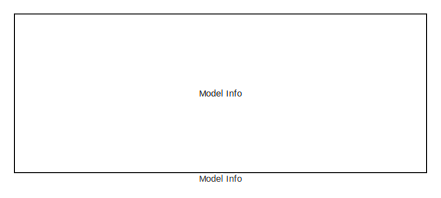
[diagram: root canvas - part 1/3, top center region]
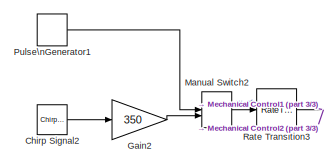
[diagram: root canvas - part 2/3, middle left region]
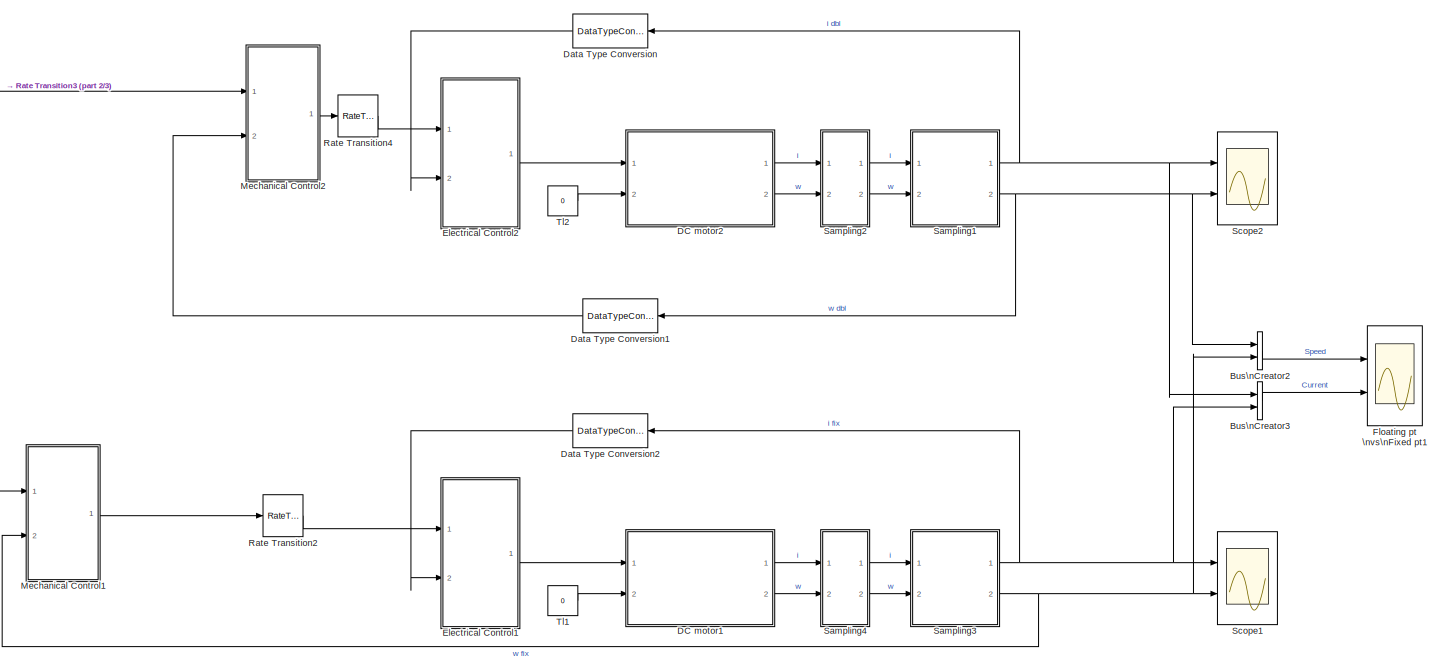
[diagram: root canvas - part 3/3, full width, middle band]
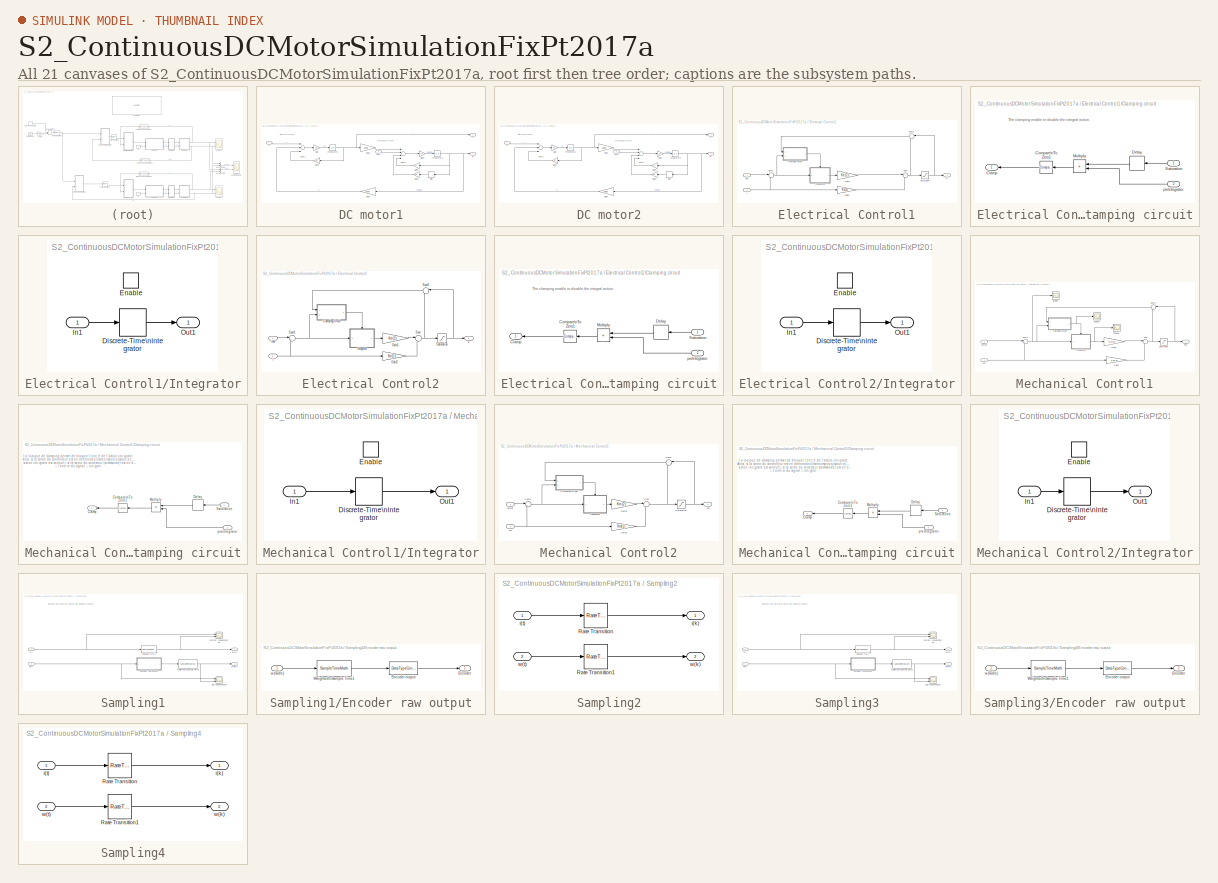
[diagram: thumbnail index - all 21 canvases of the model, root first then tree order]
MODEL S2_ContinuousDCMotorSimulationFixPt2017a
KIND model
BLOCK [BusCreator] Bus\nCreator2
  DisplayOption = bar
  InheritFromInputs = on
  Inputs = 2
  Ports = [2, 1]
  SID = 772
BLOCK [BusCreator] Bus\nCreator3
  DisplayOption = bar
  InheritFromInputs = on
  Inputs = 2
  Ports = [2, 1]
  SID = 773
BLOCK [Reference] Chirp Signal2  REF=simulink/Sources/Chirp Signal
  Ports = [0, 1]
  SID = 484
  SourceBlock = simulink/Sources/Chirp Signal
  SourceProductBaseCode = SL
  SourceProductName = Simulink
  SourceType = chirp
  T = 20
  VectorParams1D = on
  f1 = 0.1
  f2 = 5
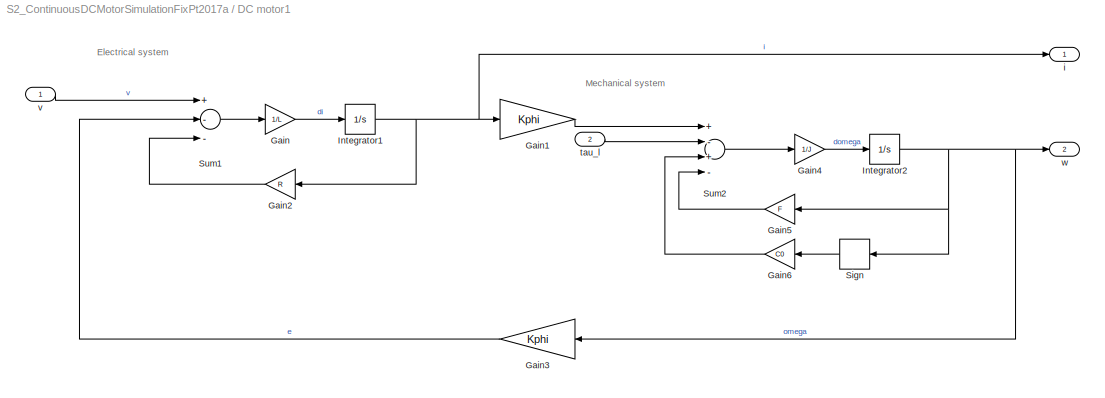
BLOCK [SubSystem] DC motor1
  Ports = [2, 2]
  RequestExecContextInheritance = off
  SID = 672
BLOCK [Gain] DC motor1/Gain
  Gain = 1/L
  OutDataTypeStr = Inherit: Inherit via internal rule
  ParamDataTypeStr = Inherit: Inherit via internal rule
  SID = 675
  SaturateOnIntegerOverflow = off
BLOCK [Gain] DC motor1/Gain1
  Gain = Kphi
  OutDataTypeStr = Inherit: Inherit via internal rule
  ParamDataTypeStr = Inherit: Inherit via internal rule
  SID = 676
  SaturateOnIntegerOverflow = off
BLOCK [Gain] DC motor1/Gain2
  Gain = R
  OutDataTypeStr = Inherit: Inherit via internal rule
  ParamDataTypeStr = Inherit: Inherit via internal rule
  SID = 677
  SaturateOnIntegerOverflow = off
BLOCK [Gain] DC motor1/Gain3  
  Gain = Kphi
  OutDataTypeStr = Inherit: Inherit via internal rule
  ParamDataTypeStr = Inherit: Inherit via internal rule
  SID = 678
  SaturateOnIntegerOverflow = off
BLOCK [Gain] DC motor1/Gain4
  Gain = 1/J
  OutDataTypeStr = Inherit: Inherit via internal rule
  ParamDataTypeStr = Inherit: Inherit via internal rule
  SID = 679
  SaturateOnIntegerOverflow = off
BLOCK [Gain] DC motor1/Gain5
  Gain = F
  OutDataTypeStr = Inherit: Inherit via internal rule
  ParamDataTypeStr = Inherit: Inherit via internal rule
  SID = 680
  SaturateOnIntegerOverflow = off
BLOCK [Gain] DC motor1/Gain6
  Gain = C0
  OutDataTypeStr = Inherit: Inherit via internal rule
  ParamDataTypeStr = Inherit: Inherit via internal rule
  SID = 681
  SaturateOnIntegerOverflow = off
BLOCK [Integrator] DC motor1/Integrator1
  Ports = [1, 1]
  SID = 682
BLOCK [Integrator] DC motor1/Integrator2
  Ports = [1, 1]
  SID = 683
BLOCK [Signum] DC motor1/Sign
  SID = 684
BLOCK [Sum] DC motor1/Sum1
  InputSameDT = off
  Inputs = +--
  OutDataTypeStr = Inherit: Inherit via internal rule
  Ports = [3, 1]
  SID = 685
  SaturateOnIntegerOverflow = off
BLOCK [Sum] DC motor1/Sum2
  InputSameDT = off
  Inputs = +-+-
  OutDataTypeStr = Inherit: Inherit via internal rule
  Ports = [4, 1]
  SID = 686
  SaturateOnIntegerOverflow = off
BLOCK [Outport] DC motor1/i
  IconDisplay = Port number
  SID = 687
BLOCK [Inport] DC motor1/tau_l
  IconDisplay = Port number
  Port = 2
  SID = 674
BLOCK [Inport] DC motor1/v
  IconDisplay = Port number
  SID = 673
  SampleTime = 0
BLOCK [Outport] DC motor1/w
  IconDisplay = Port number
  Port = 2
  SID = 688
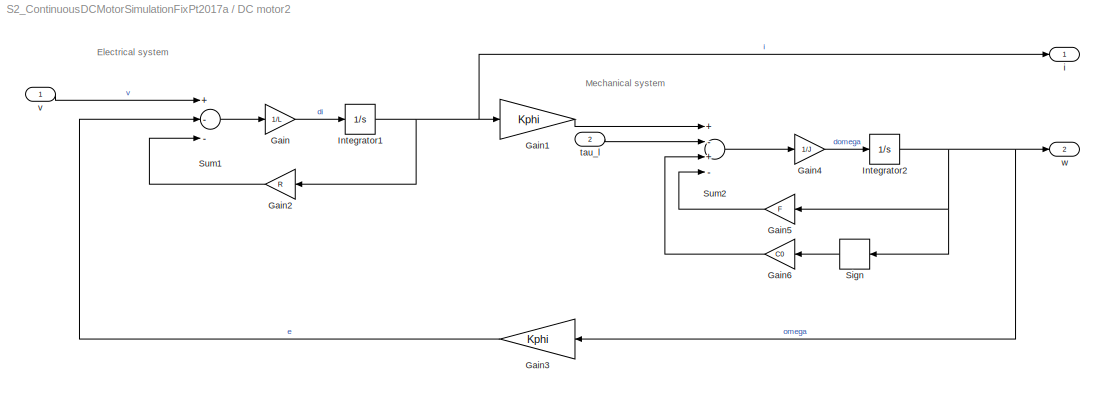
BLOCK [SubSystem] DC motor2
  Ports = [2, 2]
  RequestExecContextInheritance = off
  SID = 485
BLOCK [Gain] DC motor2/Gain
  Gain = 1/L
  OutDataTypeStr = Inherit: Inherit via internal rule
  ParamDataTypeStr = Inherit: Inherit via internal rule
  SID = 488
  SaturateOnIntegerOverflow = off
BLOCK [Gain] DC motor2/Gain1
  Gain = Kphi
  OutDataTypeStr = Inherit: Inherit via internal rule
  ParamDataTypeStr = Inherit: Inherit via internal rule
  SID = 489
  SaturateOnIntegerOverflow = off
BLOCK [Gain] DC motor2/Gain2
  Gain = R
  OutDataTypeStr = Inherit: Inherit via internal rule
  ParamDataTypeStr = Inherit: Inherit via internal rule
  SID = 490
  SaturateOnIntegerOverflow = off
BLOCK [Gain] DC motor2/Gain3  
  Gain = Kphi
  OutDataTypeStr = Inherit: Inherit via internal rule
  ParamDataTypeStr = Inherit: Inherit via internal rule
  SID = 491
  SaturateOnIntegerOverflow = off
BLOCK [Gain] DC motor2/Gain4
  Gain = 1/J
  OutDataTypeStr = Inherit: Inherit via internal rule
  ParamDataTypeStr = Inherit: Inherit via internal rule
  SID = 492
  SaturateOnIntegerOverflow = off
BLOCK [Gain] DC motor2/Gain5
  Gain = F
  OutDataTypeStr = Inherit: Inherit via internal rule
  ParamDataTypeStr = Inherit: Inherit via internal rule
  SID = 493
  SaturateOnIntegerOverflow = off
BLOCK [Gain] DC motor2/Gain6
  Gain = C0
  OutDataTypeStr = Inherit: Inherit via internal rule
  ParamDataTypeStr = Inherit: Inherit via internal rule
  SID = 494
  SaturateOnIntegerOverflow = off
BLOCK [Integrator] DC motor2/Integrator1
  Ports = [1, 1]
  SID = 495
BLOCK [Integrator] DC motor2/Integrator2
  Ports = [1, 1]
  SID = 496
BLOCK [Signum] DC motor2/Sign
  SID = 497
BLOCK [Sum] DC motor2/Sum1
  InputSameDT = off
  Inputs = +--
  OutDataTypeStr = Inherit: Inherit via internal rule
  Ports = [3, 1]
  SID = 498
  SaturateOnIntegerOverflow = off
BLOCK [Sum] DC motor2/Sum2
  InputSameDT = off
  Inputs = +-+-
  OutDataTypeStr = Inherit: Inherit via internal rule
  Ports = [4, 1]
  SID = 499
  SaturateOnIntegerOverflow = off
BLOCK [Outport] DC motor2/i
  IconDisplay = Port number
  SID = 500
BLOCK [Inport] DC motor2/tau_l
  IconDisplay = Port number
  Port = 2
  SID = 487
BLOCK [Inport] DC motor2/v
  IconDisplay = Port number
  SID = 486
  SampleTime = 0
BLOCK [Outport] DC motor2/w
  IconDisplay = Port number
  Port = 2
  SID = 501
BLOCK [DataTypeConversion] Data Type Conversion
  OutDataTypeStr = double
  RndMeth = Floor
  SID = 583
  SaturateOnIntegerOverflow = off
BLOCK [DataTypeConversion] Data Type Conversion1
  OutDataTypeStr = double
  RndMeth = Floor
  SID = 584
  SaturateOnIntegerOverflow = off
BLOCK [DataTypeConversion] Data Type Conversion2
  RndMeth = Floor
  SID = 691
  SaturateOnIntegerOverflow = off
BLOCK [SubSystem] Electrical Control1
  Ports = [2, 1]
  RequestExecContextInheritance = off
  SID = 693
BLOCK [SubSystem] Electrical Control1/Clamping circuit
  Ports = [2, 1]
  RequestExecContextInheritance = off
  SID = 696
BLOCK [Outport] Electrical Control1/Clamping circuit/Clamp
  DisableCoverage = on
  IconDisplay = Port number
  SID = 702
BLOCK [Reference] Electrical Control1/Clamping circuit/Compare\nTo Zero1  REF=simulink/Logic and Bit\nOperations/Compare\nTo Zero
  OutDataTypeStr = boolean
  Ports = [1, 1]
  SID = 699
  SourceBlock = simulink/Logic and Bit\nOperations/Compare\nTo Zero
  SourceProductBaseCode = SL
  SourceProductName = Simulink
  SourceType = Compare To Zero
  ZeroCross = on
  relop = <=
BLOCK [Delay] Electrical Control1/Clamping circuit/Delay
  DelayLength = 1
  InitialCondition = 0
  InputPortMap = u0
  Ports = [1, 1]
  SID = 700
BLOCK [Product] Electrical Control1/Clamping circuit/Multiply
  InputSameDT = off
  OutDataTypeStr = Inherit: Inherit via internal rule
  Ports = [2, 1]
  RndMeth = Floor
  SID = 701
  SaturateOnIntegerOverflow = off
BLOCK [Inport] Electrical Control1/Clamping circuit/Saturation
  DisableCoverage = on
  IconDisplay = Port number
  SID = 697
BLOCK [Inport] Electrical Control1/Clamping circuit/preIntegrator
  DisableCoverage = on
  IconDisplay = Port number
  Port = 2
  SID = 698
  VarSizeSig = No
BLOCK [Gain] Electrical Control1/Gain1
  Gain = Ke(2)
  OutDataTypeStr = fixdt(1,16)
  OutMax = [2*Vmax]
  OutMin = [2*Vmin]
  ParamDataTypeStr = Inherit: Inherit via internal rule
  SID = 704
  SaturateOnIntegerOverflow = off
BLOCK [Gain] Electrical Control1/Gain2
  Gain = Ke(1)
  OutDataTypeStr = fixdt(1,16)
  OutMax = [2*Vmax]
  OutMin = [2*Vmin]
  ParamDataTypeStr = Inherit: Inherit via internal rule
  SID = 705
  SaturateOnIntegerOverflow = off
BLOCK [SubSystem] Electrical Control1/Integrator
  Ports = [1, 1, 1]
  RequestExecContextInheritance = off
  SID = 706
BLOCK [DiscreteIntegrator] Electrical Control1/Integrator/Discrete-Time\nIntegrator
  ICPrevOutput = DiscIntNeverNeededParam
  ICPrevScaledInput = DiscIntNeverNeededParam
  InitialConditionSetting = State (most efficient)
  OutDataTypeStr = fixdt(1,32)
  OutMax = [2*Imax]
  OutMin = [2*Imin]
  Ports = [1, 1]
  SID = 709
  SampleTime = Ts
BLOCK [EnablePort] Electrical Control1/Integrator/Enable
  Ports = []
  SID = 708
BLOCK [Inport] Electrical Control1/Integrator/In1
  IconDisplay = Port number
  SID = 707
BLOCK [Outport] Electrical Control1/Integrator/Out1
  IconDisplay = Port number
  SID = 710
BLOCK [Saturate] Electrical Control1/Saturation
  InputPortMap = u0
  LowerLimit = Vmin
  Ports = [1, 1]
  SID = 711
  UpperLimit = Vmax
BLOCK [Sum] Electrical Control1/Sum
  IconShape = round
  InputSameDT = off
  Inputs = |--
  OutDataTypeStr = Inherit: Inherit via internal rule
  Ports = [2, 1]
  SID = 712
  SaturateOnIntegerOverflow = off
BLOCK [Sum] Electrical Control1/Sum1
  IconShape = round
  InputSameDT = off
  Inputs = |+-
  OutDataTypeStr = fixdt(1,16)
  OutMax = [2*Imax]
  OutMin = [2*Imin]
  Ports = [2, 1]
  SID = 713
  SaturateOnIntegerOverflow = off
BLOCK [Sum] Electrical Control1/Sum2
  AccumDataTypeStr = Inherit: Same as first input
  IconShape = round
  InputSameDT = off
  Inputs = |-+
  OutDataTypeStr = Inherit: Same as accumulator
  Ports = [2, 1]
  SID = 714
  SaturateOnIntegerOverflow = off
BLOCK [Inport] Electrical Control1/i
  IconDisplay = Port number
  Port = 2
  SID = 695
BLOCK [Inport] Electrical Control1/iref
  IconDisplay = Port number
  SID = 694
BLOCK [Outport] Electrical Control1/v
  IconDisplay = Port number
  SID = 715
BLOCK [SubSystem] Electrical Control2
  Ports = [2, 1]
  RequestExecContextInheritance = off
  SID = 504
BLOCK [SubSystem] Electrical Control2/Clamping circuit
  Ports = [2, 1]
  RequestExecContextInheritance = off
  SID = 507
BLOCK [Outport] Electrical Control2/Clamping circuit/Clamp
  DisableCoverage = on
  IconDisplay = Port number
  SID = 513
BLOCK [Reference] Electrical Control2/Clamping circuit/Compare\nTo Zero1  REF=simulink/Logic and Bit\nOperations/Compare\nTo Zero
  OutDataTypeStr = boolean
  Ports = [1, 1]
  SID = 510
  SourceBlock = simulink/Logic and Bit\nOperations/Compare\nTo Zero
  SourceProductBaseCode = SL
  SourceProductName = Simulink
  SourceType = Compare To Zero
  ZeroCross = on
  relop = <=
BLOCK [Delay] Electrical Control2/Clamping circuit/Delay
  DelayLength = 1
  InitialCondition = 0
  InputPortMap = u0
  Ports = [1, 1]
  SID = 511
BLOCK [Product] Electrical Control2/Clamping circuit/Multiply
  InputSameDT = off
  OutDataTypeStr = Inherit: Inherit via internal rule
  Ports = [2, 1]
  RndMeth = Floor
  SID = 512
  SaturateOnIntegerOverflow = off
BLOCK [Inport] Electrical Control2/Clamping circuit/Saturation
  DisableCoverage = on
  IconDisplay = Port number
  SID = 508
BLOCK [Inport] Electrical Control2/Clamping circuit/preIntegrator
  DisableCoverage = on
  IconDisplay = Port number
  Port = 2
  SID = 509
  VarSizeSig = No
BLOCK [Gain] Electrical Control2/Gain1
  Gain = Ke(2)
  OutDataTypeStr = Inherit: Inherit via internal rule
  ParamDataTypeStr = Inherit: Inherit via internal rule
  SID = 515
  SaturateOnIntegerOverflow = off
BLOCK [Gain] Electrical Control2/Gain2
  Gain = Ke(1)
  OutDataTypeStr = Inherit: Inherit via internal rule
  ParamDataTypeStr = Inherit: Inherit via internal rule
  SID = 516
  SaturateOnIntegerOverflow = off
BLOCK [SubSystem] Electrical Control2/Integrator
  Ports = [1, 1, 1]
  RequestExecContextInheritance = off
  SID = 517
BLOCK [DiscreteIntegrator] Electrical Control2/Integrator/Discrete-Time\nIntegrator
  ICPrevOutput = DiscIntNeverNeededParam
  ICPrevScaledInput = DiscIntNeverNeededParam
  InitialConditionSetting = State (most efficient)
  Ports = [1, 1]
  SID = 520
  SampleTime = Ts
BLOCK [EnablePort] Electrical Control2/Integrator/Enable
  Ports = []
  SID = 519
BLOCK [Inport] Electrical Control2/Integrator/In1
  IconDisplay = Port number
  SID = 518
BLOCK [Outport] Electrical Control2/Integrator/Out1
  IconDisplay = Port number
  SID = 521
BLOCK [Saturate] Electrical Control2/Saturation
  InputPortMap = u0
  LowerLimit = Vmin
  Ports = [1, 1]
  SID = 522
  UpperLimit = Vmax
BLOCK [Sum] Electrical Control2/Sum
  IconShape = round
  InputSameDT = off
  Inputs = |--
  OutDataTypeStr = Inherit: Inherit via internal rule
  Ports = [2, 1]
  SID = 523
  SaturateOnIntegerOverflow = off
BLOCK [Sum] Electrical Control2/Sum1
  IconShape = round
  InputSameDT = off
  Inputs = |+-
  OutDataTypeStr = Inherit: Inherit via internal rule
  Ports = [2, 1]
  SID = 524
  SaturateOnIntegerOverflow = off
BLOCK [Sum] Electrical Control2/Sum2
  AccumDataTypeStr = Inherit: Same as first input
  IconShape = round
  InputSameDT = off
  Inputs = |-+
  OutDataTypeStr = Inherit: Same as accumulator
  Ports = [2, 1]
  SID = 525
  SaturateOnIntegerOverflow = off
BLOCK [Inport] Electrical Control2/i
  IconDisplay = Port number
  Port = 2
  SID = 506
BLOCK [Inport] Electrical Control2/iref
  IconDisplay = Port number
  SID = 505
BLOCK [Outport] Electrical Control2/v
  IconDisplay = Port number
  SID = 526
BLOCK [Scope] Floating pt \nvs\nFixed pt1
  Floating = off
  NumInputPorts = 2
  Ports = [2]
  SID = 774
  ScopeSpecificationString = Simulink.scopes.TimeScopeBlockCfg('CurrentConfiguration', extmgr.ConfigurationSet(extmgr.Configuration('Core','General UI',true),extmgr.Configuration('Core','Source UI',true),extmgr.Configuration('Sources','WiredSimulink',true,'DataLoggingVariableName','ScopeData5'),extmgr.Configuration('Visuals','Time Domain',true,'SerializedDisplays',{struct('MinYLimReal','-540.35394','MaxYLimReal','464.95571','...<+2054ch>
BLOCK [Gain] Gain2
  Gain = 350
  OutDataTypeStr = Inherit: Inherit via back propagation
  ParamDataTypeStr = Inherit: Inherit via internal rule
  SID = 527
  SaturateOnIntegerOverflow = off
BLOCK [ManualSwitch] Manual Switch2
  SID = 528
BLOCK [SubSystem] Mechanical Control1
  Ports = [2, 1]
  RequestExecContextInheritance = off
  SID = 718
BLOCK [SubSystem] Mechanical Control1/Clamping circuit
  Ports = [2, 1]
  RequestExecContextInheritance = off
  SID = 721
BLOCK [Outport] Mechanical Control1/Clamping circuit/Clamp
  DisableCoverage = on
  IconDisplay = Port number
  SID = 727
BLOCK [Reference] Mechanical Control1/Clamping circuit/Compare\nTo Zero1  REF=simulink/Logic and Bit\nOperations/Compare\nTo Zero
  OutDataTypeStr = boolean
  Ports = [1, 1]
  SID = 724
  SourceBlock = simulink/Logic and Bit\nOperations/Compare\nTo Zero
  SourceProductBaseCode = SL
  SourceProductName = Simulink
  SourceType = Compare To Zero
  ZeroCross = on
  relop = <=
BLOCK [Delay] Mechanical Control1/Clamping circuit/Delay
  DelayLength = 1
  InitialCondition = 0
  InputPortMap = u0
  Ports = [1, 1]
  SID = 725
  SampleTime = TsMeca
BLOCK [Product] Mechanical Control1/Clamping circuit/Multiply
  InputSameDT = off
  OutDataTypeStr = Inherit: Inherit via internal rule
  Ports = [2, 1]
  RndMeth = Floor
  SID = 726
  SaturateOnIntegerOverflow = off
BLOCK [Inport] Mechanical Control1/Clamping circuit/Saturation
  DisableCoverage = on
  IconDisplay = Port number
  SID = 722
BLOCK [Inport] Mechanical Control1/Clamping circuit/preIntegrator
  DisableCoverage = on
  IconDisplay = Port number
  Port = 2
  SID = 723
  VarSizeSig = No
BLOCK [Gain] Mechanical Control1/Gain1
  Gain = Km(2)
  OutDataTypeStr = fixdt(1,16)
  OutMax = [2*Imax]
  OutMin = [-2*Imax]
  ParamDataTypeStr = Inherit: Inherit via internal rule
  SID = 729
  SaturateOnIntegerOverflow = off
BLOCK [Gain] Mechanical Control1/Gain2
  Gain = Km(1)
  OutDataTypeStr = fixdt(1,16)
  OutMax = [2*Imax]
  OutMin = [-2*Imax]
  ParamDataTypeStr = Inherit: Inherit via internal rule
  SID = 730
  SaturateOnIntegerOverflow = off
BLOCK [SubSystem] Mechanical Control1/Integrator
  Ports = [1, 1, 1]
  RequestExecContextInheritance = off
  SID = 731
BLOCK [DiscreteIntegrator] Mechanical Control1/Integrator/Discrete-Time\nIntegrator
  ICPrevOutput = DiscIntNeverNeededParam
  ICPrevScaledInput = DiscIntNeverNeededParam
  InitialConditionSetting = State (most efficient)
  OutDataTypeStr = fixdt(1,32)
  OutMax = [2*Ommax]
  OutMin = [2*Ommin]
  Ports = [1, 1]
  SID = 734
  SampleTime = TsMeca
BLOCK [EnablePort] Mechanical Control1/Integrator/Enable
  Ports = []
  SID = 733
BLOCK [Inport] Mechanical Control1/Integrator/In1
  IconDisplay = Port number
  SID = 732
BLOCK [Outport] Mechanical Control1/Integrator/Out1
  IconDisplay = Port number
  SID = 735
BLOCK [Saturate] Mechanical Control1/Saturation
  InputPortMap = u0
  LowerLimit = Imin
  Ports = [1, 1]
  SID = 736
  UpperLimit = Imax
BLOCK [Scope] Mechanical Control1/Scope
  Floating = off
  NumInputPorts = 1
  Ports = [1]
  SID = 769
  ScopeSpecificationString = Simulink.scopes.TimeScopeBlockCfg('CurrentConfiguration', extmgr.ConfigurationSet(extmgr.Configuration('Core','General UI',true),extmgr.Configuration('Core','Source UI',true),extmgr.Configuration('Sources','WiredSimulink',true,'DataLoggingVariableName','ScopeData2'),extmgr.Configuration('Visuals','Time Domain',true,'SerializedDisplays',{struct('MinYLimReal','-251.19531','MaxYLimReal','250.13281','...<+1428ch>
BLOCK [Scope] Mechanical Control1/Scope1
  Floating = off
  NumInputPorts = 1
  Ports = [1]
  SID = 770
  ScopeSpecificationString = Simulink.scopes.TimeScopeBlockCfg('CurrentConfiguration', extmgr.ConfigurationSet(extmgr.Configuration('Core','General UI',true),extmgr.Configuration('Core','Source UI',true),extmgr.Configuration('Sources','WiredSimulink',true,'DataLoggingVariableName','ScopeData3'),extmgr.Configuration('Visuals','Time Domain',true,'SerializedDisplays',{struct('MinYLimReal','-6.72581','MaxYLimReal','37.52422','YLa...<+1418ch>
BLOCK [Scope] Mechanical Control1/Scope2
  Floating = off
  NumInputPorts = 1
  Ports = [1]
  SID = 771
  ScopeSpecificationString = Simulink.scopes.TimeScopeBlockCfg('CurrentConfiguration', extmgr.ConfigurationSet(extmgr.Configuration('Core','General UI',true),extmgr.Configuration('Core','Source UI',true),extmgr.Configuration('Sources','WiredSimulink',true,'DataLoggingVariableName','ScopeData4'),extmgr.Configuration('Visuals','Time Domain',true,'SerializedDisplays',{struct('MinYLimReal','0.9','MaxYLimReal','1.1','YLabelReal','...<+1380ch>
BLOCK [Sum] Mechanical Control1/Sum
  IconShape = round
  InputSameDT = off
  Inputs = |--
  OutDataTypeStr = Inherit: Inherit via internal rule
  Ports = [2, 1]
  SID = 737
  SaturateOnIntegerOverflow = off
BLOCK [Sum] Mechanical Control1/Sum1
  IconShape = round
  InputSameDT = off
  Inputs = |+-
  OutDataTypeStr = fixdt(1,16)
  OutMax = [2*Ommax]
  OutMin = [2*Ommin]
  Ports = [2, 1]
  SID = 738
  SaturateOnIntegerOverflow = off
BLOCK [Sum] Mechanical Control1/Sum2
  AccumDataTypeStr = Inherit: Same as first input
  IconShape = round
  InputSameDT = off
  Inputs = |-+
  OutDataTypeStr = Inherit: Same as accumulator
  Ports = [2, 1]
  SID = 739
  SaturateOnIntegerOverflow = off
BLOCK [Outport] Mechanical Control1/iref
  IconDisplay = Port number
  SID = 740
BLOCK [Inport] Mechanical Control1/om
  IconDisplay = Port number
  Port = 2
  SID = 720
BLOCK [Inport] Mechanical Control1/omref
  IconDisplay = Port number
  OutDataTypeStr = fixdt(1,16)
  OutMax = [Ommax]
  OutMin = [Ommin]
  SID = 719
BLOCK [SubSystem] Mechanical Control2
  Ports = [2, 1]
  RequestExecContextInheritance = off
  SID = 529
BLOCK [SubSystem] Mechanical Control2/Clamping circuit
  Ports = [2, 1]
  RequestExecContextInheritance = off
  SID = 532
BLOCK [Outport] Mechanical Control2/Clamping circuit/Clamp
  DisableCoverage = on
  IconDisplay = Port number
  SID = 538
BLOCK [Reference] Mechanical Control2/Clamping circuit/Compare\nTo Zero1  REF=simulink/Logic and Bit\nOperations/Compare\nTo Zero
  OutDataTypeStr = boolean
  Ports = [1, 1]
  SID = 535
  SourceBlock = simulink/Logic and Bit\nOperations/Compare\nTo Zero
  SourceProductBaseCode = SL
  SourceProductName = Simulink
  SourceType = Compare To Zero
  ZeroCross = on
  relop = <=
BLOCK [Delay] Mechanical Control2/Clamping circuit/Delay
  DelayLength = 1
  InitialCondition = 0
  InputPortMap = u0
  Ports = [1, 1]
  SID = 536
  SampleTime = TsMeca
BLOCK [Product] Mechanical Control2/Clamping circuit/Multiply
  InputSameDT = off
  OutDataTypeStr = Inherit: Inherit via internal rule
  Ports = [2, 1]
  RndMeth = Floor
  SID = 537
  SaturateOnIntegerOverflow = off
BLOCK [Inport] Mechanical Control2/Clamping circuit/Saturation
  DisableCoverage = on
  IconDisplay = Port number
  SID = 533
BLOCK [Inport] Mechanical Control2/Clamping circuit/preIntegrator
  DisableCoverage = on
  IconDisplay = Port number
  Port = 2
  SID = 534
  VarSizeSig = No
BLOCK [Gain] Mechanical Control2/Gain1
  Gain = Km(2)
  OutDataTypeStr = Inherit: Inherit via internal rule
  ParamDataTypeStr = Inherit: Inherit via internal rule
  SID = 540
  SaturateOnIntegerOverflow = off
BLOCK [Gain] Mechanical Control2/Gain2
  Gain = Km(1)
  OutDataTypeStr = Inherit: Inherit via internal rule
  ParamDataTypeStr = Inherit: Inherit via internal rule
  SID = 541
  SaturateOnIntegerOverflow = off
BLOCK [SubSystem] Mechanical Control2/Integrator
  Ports = [1, 1, 1]
  RequestExecContextInheritance = off
  SID = 542
BLOCK [DiscreteIntegrator] Mechanical Control2/Integrator/Discrete-Time\nIntegrator
  ICPrevOutput = DiscIntNeverNeededParam
  ICPrevScaledInput = DiscIntNeverNeededParam
  InitialConditionSetting = State (most efficient)
  Ports = [1, 1]
  SID = 545
  SampleTime = TsMeca
BLOCK [EnablePort] Mechanical Control2/Integrator/Enable
  Ports = []
  SID = 544
BLOCK [Inport] Mechanical Control2/Integrator/In1
  IconDisplay = Port number
  SID = 543
BLOCK [Outport] Mechanical Control2/Integrator/Out1
  IconDisplay = Port number
  SID = 546
BLOCK [Saturate] Mechanical Control2/Saturation
  InputPortMap = u0
  LowerLimit = Imin
  Ports = [1, 1]
  SID = 547
  UpperLimit = Imax
BLOCK [Sum] Mechanical Control2/Sum
  IconShape = round
  InputSameDT = off
  Inputs = |--
  OutDataTypeStr = Inherit: Inherit via internal rule
  Ports = [2, 1]
  SID = 548
  SaturateOnIntegerOverflow = off
BLOCK [Sum] Mechanical Control2/Sum1
  IconShape = round
  InputSameDT = off
  Inputs = |+-
  OutDataTypeStr = Inherit: Inherit via internal rule
  Ports = [2, 1]
  SID = 549
  SaturateOnIntegerOverflow = off
BLOCK [Sum] Mechanical Control2/Sum2
  AccumDataTypeStr = Inherit: Same as first input
  IconShape = round
  InputSameDT = off
  Inputs = |-+
  OutDataTypeStr = Inherit: Same as accumulator
  Ports = [2, 1]
  SID = 550
  SaturateOnIntegerOverflow = off
BLOCK [Outport] Mechanical Control2/iref
  IconDisplay = Port number
  SID = 551
BLOCK [Inport] Mechanical Control2/om
  IconDisplay = Port number
  Port = 2
  SID = 531
BLOCK [Inport] Mechanical Control2/omref
  IconDisplay = Port number
  SID = 530
BLOCK [Reference] Model Info  REF=simulink/Model-Wide\nUtilities/Model Info
  DisplayStringWithTags = %<ModelName> v%<ModelVersion> - %<Creator>\n\n%<Description>\n\nLost modified on: %<LastModificationDate>
  Frame = on
  HorizontalTextAlignment = Center
  LeftAlignmentValue = 0.5
  MaskDisplayString = S2_ContinuousDCMotorSimulationFixPt2017a v1.35 - R.Delpoux & L.Kerhuel\\n\\nContinuous time model of the DC motor\\n\\nCascaded speed control :\\n- Inner loop : electrical control (state feedback with integral action)\\n- Outer loop :  mechanical control (state feedback with integral action)\\n- Clamping : Enable or disable integral actions\\n\\nLost modified on: Wed Dec 12 14:18:59 2018
  Ports = []
  SID = 277
  SourceBlock = simulink/Model-Wide\nUtilities/Model Info
  SourceProductBaseCode = SL
  SourceProductName = Simulink
  SourceType = CMBlock
BLOCK [DiscretePulseGenerator] Pulse\nGenerator1
  Amplitude = 200
  PhaseDelay = 0.5
  Ports = [0, 1]
  PulseType = Time based
  PulseWidth = 50
  SID = 670
  SampleTime = -1
BLOCK [RateTransition] Rate Transition2
  Deterministic = off
  SID = 743
BLOCK [RateTransition] Rate Transition3
  Deterministic = off
  SID = 668
BLOCK [RateTransition] Rate Transition4
  Deterministic = off
  SID = 669
BLOCK [SubSystem] Sampling1
  Ports = [2, 2]
  RequestExecContextInheritance = off
  SID = 451
BLOCK [DataTypeConversion] Sampling1/Convert to A
  LockScale = on
  OutDataTypeStr = fixdt(1,16,4.4/32768,0)
  RndMeth = Floor
  SID = 568
BLOCK [Scope] Sampling1/Current \nquantization
  Floating = off
  NumInputPorts = 2
  Ports = [2]
  SID = 569
  ScopeSpecificationString = Simulink.scopes.TimeScopeBlockCfg('CurrentConfiguration', extmgr.ConfigurationSet(extmgr.Configuration('Core','General UI',true),extmgr.Configuration('Core','Source UI',true),extmgr.Configuration('Sources','WiredSimulink',true,'DataLoggingVariableName','ScopeData1'),extmgr.Configuration('Visuals','Time Domain',true,'SerializedDisplays',{struct('MinYLimReal','-4.53222','MaxYLimReal','18.09714','YLa...<+1513ch>
BLOCK [SubSystem] Sampling1/Encoder raw output
  Ports = [1, 1]
  RequestExecContextInheritance = off
  SID = 570
BLOCK [Outport] Sampling1/Encoder raw output/Encoder
  IconDisplay = Port number
  SID = 574
BLOCK [DataTypeConversion] Sampling1/Encoder raw output/Encoder output
  LockScale = on
  OutDataTypeStr = int16
  RndMeth = Floor
  SID = 572
BLOCK [SampleTimeMath] Sampling1/Encoder raw output/Weighted\nSample Time1
  SID = 573
  TsampMathOp = *
  weightValue = 1000/pi
BLOCK [Inport] Sampling1/Encoder raw output/w (rad//s)
  IconDisplay = Port number
  SID = 571
BLOCK [Scope] Sampling1/QEI\nquantization
  Floating = off
  NumInputPorts = 2
  Ports = [2]
  SID = 575
  ScopeSpecificationString = Simulink.scopes.TimeScopeBlockCfg('CurrentConfiguration', extmgr.ConfigurationSet(extmgr.Configuration('Core','General UI',true),extmgr.Configuration('Core','Source UI',true),extmgr.Configuration('Sources','WiredSimulink',true,'DataLoggingVariableName','ScopeData2'),extmgr.Configuration('Visuals','Time Domain',true,'SerializedDisplays',{struct('MinYLimReal','-26.77669','MaxYLimReal','240.99021','Y...<+1530ch>
BLOCK [SampleTimeMath] Sampling1/Weighted\nSample Time1
  SID = 576
  TsampMathImp = Offline Scaling Adjustment
  TsampMathOp = /
  weightValue = 1000/pi
BLOCK [Inport] Sampling1/i(t)
  IconDisplay = Port number
  SID = 452
BLOCK [Outport] Sampling1/q(i(k))
  IconDisplay = Port number
  SID = 478
BLOCK [Outport] Sampling1/q(w(k))
  IconDisplay = Port number
  Port = 2
  SID = 479
BLOCK [Inport] Sampling1/w(t)
  IconDisplay = Port number
  Port = 2
  SID = 453
BLOCK [SubSystem] Sampling2
  Ports = [2, 2]
  RequestExecContextInheritance = off
  SID = 556
BLOCK [RateTransition] Sampling2/Rate Transition
  Deterministic = off
  OutPortSampleTime = Ts
  SID = 559
BLOCK [RateTransition] Sampling2/Rate Transition1
  Deterministic = off
  OutPortSampleTime = TsMeca
  SID = 560
BLOCK [Outport] Sampling2/i(k)
  IconDisplay = Port number
  SID = 561
BLOCK [Inport] Sampling2/i(t)
  IconDisplay = Port number
  SID = 557
BLOCK [Outport] Sampling2/w(k)
  IconDisplay = Port number
  Port = 2
  SID = 562
BLOCK [Inport] Sampling2/w(t)
  IconDisplay = Port number
  Port = 2
  SID = 558
BLOCK [SubSystem] Sampling3
  Ports = [2, 2]
  RequestExecContextInheritance = off
  SID = 744
BLOCK [DataTypeConversion] Sampling3/Convert to A
  LockScale = on
  OutDataTypeStr = fixdt(1,16,4.4/32768,0)
  RndMeth = Floor
  SID = 747
BLOCK [Scope] Sampling3/Current \nquantization
  Floating = off
  NumInputPorts = 2
  Ports = [2]
  SID = 748
  ScopeSpecificationString = Simulink.scopes.TimeScopeBlockCfg('CurrentConfiguration', extmgr.ConfigurationSet(extmgr.Configuration('Core','General UI',true),extmgr.Configuration('Core','Source UI',true),extmgr.Configuration('Sources','WiredSimulink',true,'DataLoggingVariableName','ScopeData1'),extmgr.Configuration('Visuals','Time Domain',true,'SerializedDisplays',{struct('MinYLimReal','-4.53222','MaxYLimReal','18.09714','YLa...<+1513ch>
BLOCK [SubSystem] Sampling3/Encoder raw output
  Ports = [1, 1]
  RequestExecContextInheritance = off
  SID = 749
BLOCK [Outport] Sampling3/Encoder raw output/Encoder
  IconDisplay = Port number
  SID = 753
BLOCK [DataTypeConversion] Sampling3/Encoder raw output/Encoder output
  LockScale = on
  OutDataTypeStr = int16
  RndMeth = Floor
  SID = 751
BLOCK [SampleTimeMath] Sampling3/Encoder raw output/Weighted\nSample Time1
  SID = 752
  TsampMathOp = *
  weightValue = 1000/pi
BLOCK [Inport] Sampling3/Encoder raw output/w (rad//s)
  IconDisplay = Port number
  SID = 750
BLOCK [Scope] Sampling3/QEI\nquantization
  Floating = off
  NumInputPorts = 2
  Ports = [2]
  SID = 754
  ScopeSpecificationString = Simulink.scopes.TimeScopeBlockCfg('CurrentConfiguration', extmgr.ConfigurationSet(extmgr.Configuration('Core','General UI',true),extmgr.Configuration('Core','Source UI',true),extmgr.Configuration('Sources','WiredSimulink',true,'DataLoggingVariableName','ScopeData2'),extmgr.Configuration('Visuals','Time Domain',true,'SerializedDisplays',{struct('MinYLimReal','-26.77669','MaxYLimReal','240.99021','Y...<+1530ch>
BLOCK [SampleTimeMath] Sampling3/Weighted\nSample Time1
  SID = 755
  TsampMathImp = Offline Scaling Adjustment
  TsampMathOp = /
  weightValue = 1000/pi
BLOCK [Inport] Sampling3/i(t)
  IconDisplay = Port number
  SID = 745
BLOCK [Outport] Sampling3/q(i(k))
  IconDisplay = Port number
  SID = 756
BLOCK [Outport] Sampling3/q(w(k))
  IconDisplay = Port number
  Port = 2
  SID = 757
BLOCK [Inport] Sampling3/w(t)
  IconDisplay = Port number
  Port = 2
  SID = 746
BLOCK [SubSystem] Sampling4
  Ports = [2, 2]
  RequestExecContextInheritance = off
  SID = 759
BLOCK [RateTransition] Sampling4/Rate Transition
  Deterministic = off
  OutPortSampleTime = Ts
  SID = 762
BLOCK [RateTransition] Sampling4/Rate Transition1
  Deterministic = off
  OutPortSampleTime = TsMeca
  SID = 763
BLOCK [Outport] Sampling4/i(k)
  IconDisplay = Port number
  SID = 764
BLOCK [Inport] Sampling4/i(t)
  IconDisplay = Port number
  SID = 760
BLOCK [Outport] Sampling4/w(k)
  IconDisplay = Port number
  Port = 2
  SID = 765
BLOCK [Inport] Sampling4/w(t)
  IconDisplay = Port number
  Port = 2
  SID = 761
BLOCK [Scope] Scope1
  Floating = off
  NumInputPorts = 2
  Ports = [2]
  SID = 766
  ScopeSpecificationString = Simulink.scopes.TimeScopeBlockCfg('CurrentConfiguration', extmgr.ConfigurationSet(extmgr.Configuration('Core','General UI',true),extmgr.Configuration('Core','Source UI',true),extmgr.Configuration('Sources','WiredSimulink',true,'DataLoggingVariableName','ScopeData1'),extmgr.Configuration('Visuals','Time Domain',true,'SerializedDisplays',{struct('MinYLimReal','-5.19861','MaxYLimReal','5.45428','YLab...<+2040ch>
BLOCK [Scope] Scope2
  Floating = off
  NumInputPorts = 2
  Ports = [2]
  SID = 563
  ScopeSpecificationString = Simulink.scopes.TimeScopeBlockCfg('CurrentConfiguration', extmgr.ConfigurationSet(extmgr.Configuration('Core','General UI',true),extmgr.Configuration('Core','Source UI',true),extmgr.Configuration('Sources','WiredSimulink',true,'DataLoggingVariableName','ScopeData1'),extmgr.Configuration('Visuals','Time Domain',true,'SerializedDisplays',{struct('MinYLimReal','-5.66771','MaxYLimReal','5.80576','YLab...<+2040ch>
BLOCK [Constant] Tl1
  SID = 767
  Value = 0
BLOCK [Constant] Tl2
  SID = 564
  Value = 0
ANNOTATION DC motor1: Electrical system
ANNOTATION DC motor1: Mechanical system
ANNOTATION DC motor2: Electrical system
ANNOTATION DC motor2: Mechanical system
ANNOTATION Electrical Control1/Clamping circuit: The clamping enable or disable the integral action. \n
ANNOTATION Electrical Control2/Clamping circuit: The clamping enable or disable the integral action. \n
ANNOTATION Mechanical Control1/Clamping circuit: La logique de clamping permet de bloquer l'entée de l'action intégrale. \nAinsi, si la sortie du controlleur est en dehors des limites imposés (saturée), alors l'action intégrale du correcteur est verrouyé (clamping). \nL'action intégrale est verroullé si la sortie du correcteur (commande) est en dehors des saturations et que le signe de cette sortie est égale\nà l'entrée du signal à intégrer.\n
ANNOTATION Mechanical Control2/Clamping circuit: La logique de clamping permet de bloquer l'entée de l'action intégrale. \nAinsi, si la sortie du controlleur est en dehors des limites imposés (saturée), alors l'action intégrale du correcteur est verrouyé (clamping). \nL'action intégrale est verroullé si la sortie du correcteur (commande) est en dehors des saturations et que le signe de cette sortie est égale\nà l'entrée du signal à intégrer.\n
ANNOTATION Sampling1: \n \n Quantize and saturate sensor like onboard sensors \n \n Note QEI resolution vary with its sampling rate: \n the lower the sampling for QEI, the higher its resolution. \n \n Modify sampling rate (through the rate transition block) of inner and outer loop and see impact on simulation \n \n Default values: 50us for current control loop, 2ms for speed control loop
ANNOTATION Sampling3: \n \n Quantize and saturate sensor like onboard sensors \n \n Note QEI resolution vary with its sampling rate: \n the lower the sampling for QEI, the higher its resolution. \n \n Modify sampling rate (through the rate transition block) of inner and outer loop and see impact on simulation \n \n Default values: 50us for current control loop, 2ms for speed control loop
LINE Bus\nCreator2:1 -> Floating pt \nvs\nFixed pt1:1
LINE Bus\nCreator3:1 -> Floating pt \nvs\nFixed pt1:2
LINE Chirp Signal2:1 -> Gain2:1
LINE DC motor1/Gain1:1 -> DC motor1/Sum2:1
LINE DC motor1/Gain2:1 -> DC motor1/Sum1:3
LINE DC motor1/Gain3  :1 -> DC motor1/Sum1:2
LINE DC motor1/Gain4:1 -> DC motor1/Integrator2:1
LINE DC motor1/Gain5:1 -> DC motor1/Sum2:4
LINE DC motor1/Gain6:1 -> DC motor1/Sum2:3
LINE DC motor1/Gain:1 -> DC motor1/Integrator1:1
NET DC motor1/Integrator1:1 -> DC motor1/Gain1:1, DC motor1/Gain2:1, DC motor1/i:1
NET DC motor1/Integrator2:1 -> DC motor1/Gain3  :1, DC motor1/Gain5:1, DC motor1/Sign:1, DC motor1/w:1
LINE DC motor1/Sign:1 -> DC motor1/Gain6:1
LINE DC motor1/Sum1:1 -> DC motor1/Gain:1
LINE DC motor1/Sum2:1 -> DC motor1/Gain4:1
LINE DC motor1/tau_l:1 -> DC motor1/Sum2:2
LINE DC motor1/v:1 -> DC motor1/Sum1:1
LINE DC motor1:1 -> Sampling4:1
LINE DC motor1:2 -> Sampling4:2
LINE DC motor2/Gain1:1 -> DC motor2/Sum2:1
LINE DC motor2/Gain2:1 -> DC motor2/Sum1:3
LINE DC motor2/Gain3  :1 -> DC motor2/Sum1:2
LINE DC motor2/Gain4:1 -> DC motor2/Integrator2:1
LINE DC motor2/Gain5:1 -> DC motor2/Sum2:4
LINE DC motor2/Gain6:1 -> DC motor2/Sum2:3
LINE DC motor2/Gain:1 -> DC motor2/Integrator1:1
NET DC motor2/Integrator1:1 -> DC motor2/Gain1:1, DC motor2/Gain2:1, DC motor2/i:1
NET DC motor2/Integrator2:1 -> DC motor2/Gain3  :1, DC motor2/Gain5:1, DC motor2/Sign:1, DC motor2/w:1
LINE DC motor2/Sign:1 -> DC motor2/Gain6:1
LINE DC motor2/Sum1:1 -> DC motor2/Gain:1
LINE DC motor2/Sum2:1 -> DC motor2/Gain4:1
LINE DC motor2/tau_l:1 -> DC motor2/Sum2:2
LINE DC motor2/v:1 -> DC motor2/Sum1:1
LINE DC motor2:1 -> Sampling2:1
LINE DC motor2:2 -> Sampling2:2
LINE Data Type Conversion1:1 -> Mechanical Control2:2
LINE Data Type Conversion2:1 -> Electrical Control1:2
LINE Data Type Conversion:1 -> Electrical Control2:2
LINE Electrical Control1/Clamping circuit/Compare\nTo Zero1:1 -> Electrical Control1/Clamping circuit/Clamp:1
LINE Electrical Control1/Clamping circuit/Delay:1 -> Electrical Control1/Clamping circuit/Multiply:1
LINE Electrical Control1/Clamping circuit/Multiply:1 -> Electrical Control1/Clamping circuit/Compare\nTo Zero1:1
LINE Electrical Control1/Clamping circuit/Saturation:1 -> Electrical Control1/Clamping circuit/Delay:1
LINE Electrical Control1/Clamping circuit/preIntegrator:1 -> Electrical Control1/Clamping circuit/Multiply:2
LINE Electrical Control1/Clamping circuit:1 -> Electrical Control1/Integrator:enable
LINE Electrical Control1/Gain1:1 -> Electrical Control1/Sum:1
LINE Electrical Control1/Gain2:1 -> Electrical Control1/Sum:2
LINE Electrical Control1/Integrator/Discrete-Time\nIntegrator:1 -> Electrical Control1/Integrator/Out1:1
LINE Electrical Control1/Integrator/In1:1 -> Electrical Control1/Integrator/Discrete-Time\nIntegrator:1
LINE Electrical Control1/Integrator:1 -> Electrical Control1/Gain1:1
NET Electrical Control1/Saturation:1 -> Electrical Control1/Sum2:1, Electrical Control1/v:1
NET Electrical Control1/Sum1:1 -> Electrical Control1/Clamping circuit:2, Electrical Control1/Integrator:1
LINE Electrical Control1/Sum2:1 -> Electrical Control1/Clamping circuit:1
NET Electrical Control1/Sum:1 -> Electrical Control1/Saturation:1, Electrical Control1/Sum2:2
NET Electrical Control1/i:1 -> Electrical Control1/Gain2:1, Electrical Control1/Sum1:2
LINE Electrical Control1/iref:1 -> Electrical Control1/Sum1:1
LINE Electrical Control1:1 -> DC motor1:1
LINE Electrical Control2/Clamping circuit/Compare\nTo Zero1:1 -> Electrical Control2/Clamping circuit/Clamp:1
LINE Electrical Control2/Clamping circuit/Delay:1 -> Electrical Control2/Clamping circuit/Multiply:1
LINE Electrical Control2/Clamping circuit/Multiply:1 -> Electrical Control2/Clamping circuit/Compare\nTo Zero1:1
LINE Electrical Control2/Clamping circuit/Saturation:1 -> Electrical Control2/Clamping circuit/Delay:1
LINE Electrical Control2/Clamping circuit/preIntegrator:1 -> Electrical Control2/Clamping circuit/Multiply:2
LINE Electrical Control2/Clamping circuit:1 -> Electrical Control2/Integrator:enable
LINE Electrical Control2/Gain1:1 -> Electrical Control2/Sum:1
LINE Electrical Control2/Gain2:1 -> Electrical Control2/Sum:2
LINE Electrical Control2/Integrator/Discrete-Time\nIntegrator:1 -> Electrical Control2/Integrator/Out1:1
LINE Electrical Control2/Integrator/In1:1 -> Electrical Control2/Integrator/Discrete-Time\nIntegrator:1
LINE Electrical Control2/Integrator:1 -> Electrical Control2/Gain1:1
NET Electrical Control2/Saturation:1 -> Electrical Control2/Sum2:1, Electrical Control2/v:1
NET Electrical Control2/Sum1:1 -> Electrical Control2/Clamping circuit:2, Electrical Control2/Integrator:1
LINE Electrical Control2/Sum2:1 -> Electrical Control2/Clamping circuit:1
NET Electrical Control2/Sum:1 -> Electrical Control2/Saturation:1, Electrical Control2/Sum2:2
NET Electrical Control2/i:1 -> Electrical Control2/Gain2:1, Electrical Control2/Sum1:2
LINE Electrical Control2/iref:1 -> Electrical Control2/Sum1:1
LINE Electrical Control2:1 -> DC motor2:1
LINE Gain2:1 -> Manual Switch2:2
LINE Manual Switch2:1 -> Rate Transition3:1
LINE Mechanical Control1/Clamping circuit/Compare\nTo Zero1:1 -> Mechanical Control1/Clamping circuit/Clamp:1
LINE Mechanical Control1/Clamping circuit/Delay:1 -> Mechanical Control1/Clamping circuit/Multiply:1
LINE Mechanical Control1/Clamping circuit/Multiply:1 -> Mechanical Control1/Clamping circuit/Compare\nTo Zero1:1
LINE Mechanical Control1/Clamping circuit/Saturation:1 -> Mechanical Control1/Clamping circuit/Delay:1
LINE Mechanical Control1/Clamping circuit/preIntegrator:1 -> Mechanical Control1/Clamping circuit/Multiply:2
NET Mechanical Control1/Clamping circuit:1 -> Mechanical Control1/Integrator:enable, Mechanical Control1/Scope2:1
LINE Mechanical Control1/Gain1:1 -> Mechanical Control1/Sum:1
LINE Mechanical Control1/Gain2:1 -> Mechanical Control1/Sum:2
LINE Mechanical Control1/Integrator/Discrete-Time\nIntegrator:1 -> Mechanical Control1/Integrator/Out1:1
LINE Mechanical Control1/Integrator/In1:1 -> Mechanical Control1/Integrator/Discrete-Time\nIntegrator:1
NET Mechanical Control1/Integrator:1 -> Mechanical Control1/Gain1:1, Mechanical Control1/Scope1:1
NET Mechanical Control1/Saturation:1 -> Mechanical Control1/Sum2:1, Mechanical Control1/iref:1
NET Mechanical Control1/Sum1:1 -> Mechanical Control1/Clamping circuit:2, Mechanical Control1/Integrator:1, Mechanical Control1/Scope:1
LINE Mechanical Control1/Sum2:1 -> Mechanical Control1/Clamping circuit:1
NET Mechanical Control1/Sum:1 -> Mechanical Control1/Saturation:1, Mechanical Control1/Sum2:2
NET Mechanical Control1/om:1 -> Mechanical Control1/Gain2:1, Mechanical Control1/Sum1:2
LINE Mechanical Control1/omref:1 -> Mechanical Control1/Sum1:1
LINE Mechanical Control1:1 -> Rate Transition2:1
LINE Mechanical Control2/Clamping circuit/Compare\nTo Zero1:1 -> Mechanical Control2/Clamping circuit/Clamp:1
LINE Mechanical Control2/Clamping circuit/Delay:1 -> Mechanical Control2/Clamping circuit/Multiply:1
LINE Mechanical Control2/Clamping circuit/Multiply:1 -> Mechanical Control2/Clamping circuit/Compare\nTo Zero1:1
LINE Mechanical Control2/Clamping circuit/Saturation:1 -> Mechanical Control2/Clamping circuit/Delay:1
LINE Mechanical Control2/Clamping circuit/preIntegrator:1 -> Mechanical Control2/Clamping circuit/Multiply:2
LINE Mechanical Control2/Clamping circuit:1 -> Mechanical Control2/Integrator:enable
LINE Mechanical Control2/Gain1:1 -> Mechanical Control2/Sum:1
LINE Mechanical Control2/Gain2:1 -> Mechanical Control2/Sum:2
LINE Mechanical Control2/Integrator/Discrete-Time\nIntegrator:1 -> Mechanical Control2/Integrator/Out1:1
LINE Mechanical Control2/Integrator/In1:1 -> Mechanical Control2/Integrator/Discrete-Time\nIntegrator:1
LINE Mechanical Control2/Integrator:1 -> Mechanical Control2/Gain1:1
NET Mechanical Control2/Saturation:1 -> Mechanical Control2/Sum2:1, Mechanical Control2/iref:1
NET Mechanical Control2/Sum1:1 -> Mechanical Control2/Clamping circuit:2, Mechanical Control2/Integrator:1
LINE Mechanical Control2/Sum2:1 -> Mechanical Control2/Clamping circuit:1
NET Mechanical Control2/Sum:1 -> Mechanical Control2/Saturation:1, Mechanical Control2/Sum2:2
NET Mechanical Control2/om:1 -> Mechanical Control2/Gain2:1, Mechanical Control2/Sum1:2
LINE Mechanical Control2/omref:1 -> Mechanical Control2/Sum1:1
LINE Mechanical Control2:1 -> Rate Transition4:1
LINE Pulse\nGenerator1:1 -> Manual Switch2:1
LINE Rate Transition2:1 -> Electrical Control1:1
NET Rate Transition3:1 -> Mechanical Control1:1, Mechanical Control2:1
LINE Rate Transition4:1 -> Electrical Control2:1
NET Sampling1/Convert to A:1 -> Sampling1/Current \nquantization:2, Sampling1/q(i(k)):1
LINE Sampling1/Encoder raw output/Encoder output:1 -> Sampling1/Encoder raw output/Encoder:1
LINE Sampling1/Encoder raw output/Weighted\nSample Time1:1 -> Sampling1/Encoder raw output/Encoder output:1
LINE Sampling1/Encoder raw output/w (rad//s):1 -> Sampling1/Encoder raw output/Weighted\nSample Time1:1
LINE Sampling1/Encoder raw output:1 -> Sampling1/Weighted\nSample Time1:1
NET Sampling1/Weighted\nSample Time1:1 -> Sampling1/QEI\nquantization:2, Sampling1/q(w(k)):1
NET Sampling1/i(t):1 -> Sampling1/Convert to A:1, Sampling1/Current \nquantization:1
NET Sampling1/w(t):1 -> Sampling1/Encoder raw output:1, Sampling1/QEI\nquantization:1
NET Sampling1:1 -> Bus\nCreator3:1, Data Type Conversion:1, Scope2:1
NET Sampling1:2 -> Bus\nCreator2:1, Data Type Conversion1:1, Scope2:2
LINE Sampling2/Rate Transition1:1 -> Sampling2/w(k):1
LINE Sampling2/Rate Transition:1 -> Sampling2/i(k):1
LINE Sampling2/i(t):1 -> Sampling2/Rate Transition:1
LINE Sampling2/w(t):1 -> Sampling2/Rate Transition1:1
LINE Sampling2:1 -> Sampling1:1
LINE Sampling2:2 -> Sampling1:2
NET Sampling3/Convert to A:1 -> Sampling3/Current \nquantization:2, Sampling3/q(i(k)):1
LINE Sampling3/Encoder raw output/Encoder output:1 -> Sampling3/Encoder raw output/Encoder:1
LINE Sampling3/Encoder raw output/Weighted\nSample Time1:1 -> Sampling3/Encoder raw output/Encoder output:1
LINE Sampling3/Encoder raw output/w (rad//s):1 -> Sampling3/Encoder raw output/Weighted\nSample Time1:1
LINE Sampling3/Encoder raw output:1 -> Sampling3/Weighted\nSample Time1:1
NET Sampling3/Weighted\nSample Time1:1 -> Sampling3/QEI\nquantization:2, Sampling3/q(w(k)):1
NET Sampling3/i(t):1 -> Sampling3/Convert to A:1, Sampling3/Current \nquantization:1
NET Sampling3/w(t):1 -> Sampling3/Encoder raw output:1, Sampling3/QEI\nquantization:1
NET Sampling3:1 -> Bus\nCreator3:2, Data Type Conversion2:1, Scope1:1
NET Sampling3:2 -> Bus\nCreator2:2, Mechanical Control1:2, Scope1:2
LINE Sampling4/Rate Transition1:1 -> Sampling4/w(k):1
LINE Sampling4/Rate Transition:1 -> Sampling4/i(k):1
LINE Sampling4/i(t):1 -> Sampling4/Rate Transition:1
LINE Sampling4/w(t):1 -> Sampling4/Rate Transition1:1
LINE Sampling4:1 -> Sampling3:1
LINE Sampling4:2 -> Sampling3:2
LINE Tl1:1 -> DC motor1:2
LINE Tl2:1 -> DC motor2:2
note: NET lines group one-source signal fan-out (src -> all destinations, sorted); 1:1 wires keep LINE
